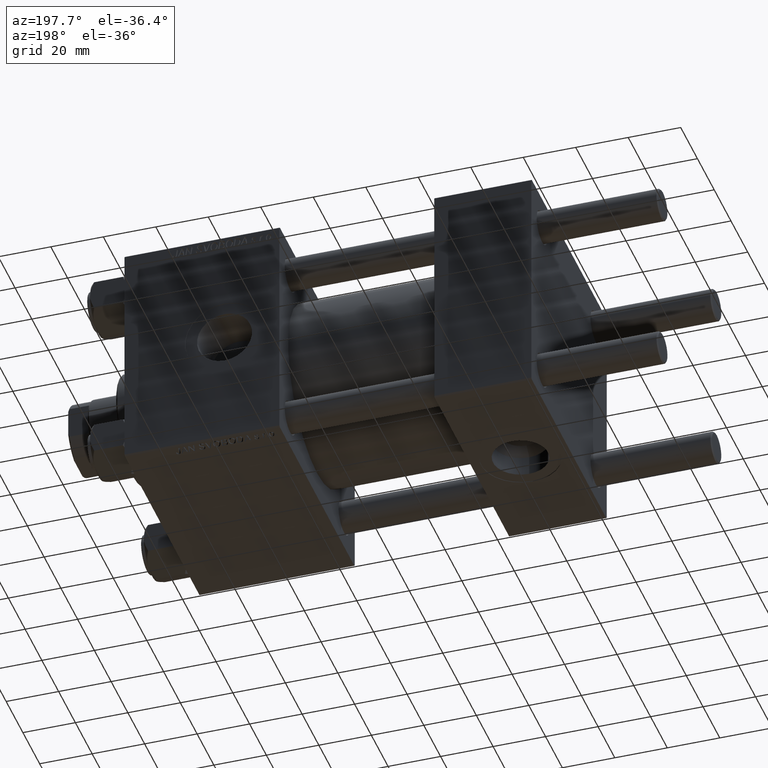
[diagram: clean part render]
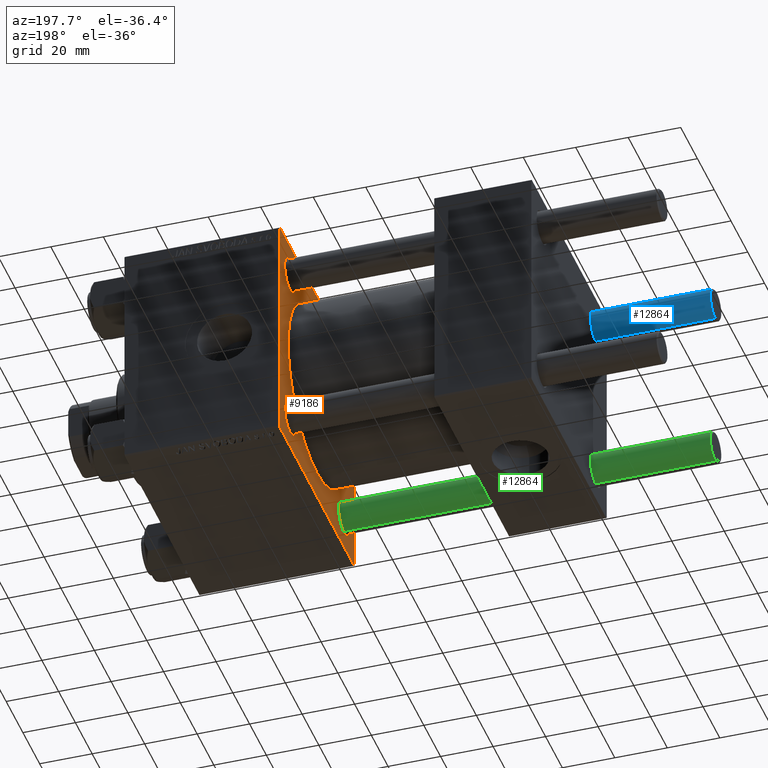
[diagram: same view with three faces highlighted in distinct colors, each labeled with its STEP entity id]
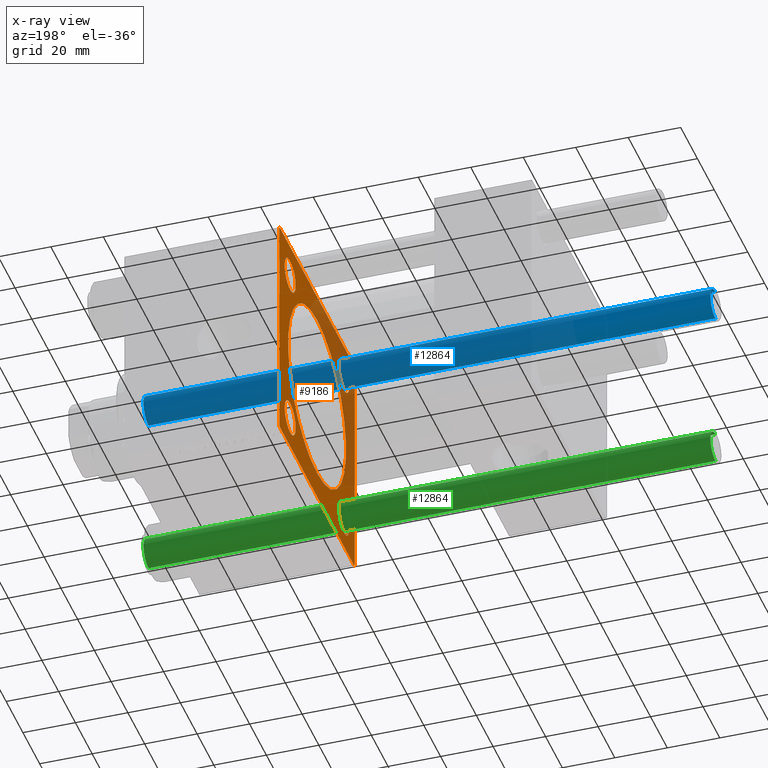
[diagram: x-ray of the same camera — body ghosted, the three highlighted faces saturated]
A machine part, auxiliary view with three faces highlighted in distinct colors.
The next image is the same camera in x-ray (body ghosted, the three faces saturated) — at least one of them is partly hidden behind the body in this view.
Their STEP definitions:

[orange] entity #9186 — the highlighted planar face has unit normal (-1, 0, 0).
#333 = EDGE_CURVE ( 'NONE', #16594, #20220, #38061, .T. ) ;
#665 = DIRECTION ( 'NONE',  ( 0.000000000000000000, 0.000000000000000000, -1.000000000000000000 ) ) ;
#941 = EDGE_LOOP ( 'NONE', ( #2303, #28106 ) ) ;
#1022 = CARTESIAN_POINT ( 'NONE',  ( 96.00000000000000000, 32.14999999999999147, 32.15000000000000568 ) ) ;
#1215 = FACE_OUTER_BOUND ( 'NONE', #5217, .T. ) ;
#1903 = CARTESIAN_POINT ( 'NONE',  ( 96.00000000000000000, -45.00000000000000000, 44.49999999999995737 ) ) ;
#2227 = AXIS2_PLACEMENT_3D ( 'NONE', #24875, #17310, #32704 ) ;
#2303 = ORIENTED_EDGE ( 'NONE', *, *, #30549, .T. ) ;
#2771 = VECTOR ( 'NONE', #43622, 1000.000000000000000 ) ;
#3328 = ORIENTED_EDGE ( 'NONE', *, *, #333, .T. ) ;
#3915 = CARTESIAN_POINT ( 'NONE',  ( 96.00000000000000000, -44.74999999999965183, -44.75000000000027001 ) ) ;
#4421 = EDGE_LOOP ( 'NONE', ( #34519, #29919 ) ) ;
#4543 = EDGE_CURVE ( 'NONE', #25875, #9711, #47150, .T. ) ;
#4649 = LINE ( 'NONE', #3915, #25366 ) ;
#4860 = DIRECTION ( 'NONE',  ( 1.000000000000000000, 0.000000000000000000, 0.000000000000000000 ) ) ;
#5217 = EDGE_LOOP ( 'NONE', ( #26454, #28123, #33689, #12701, #12866, #28057, #24471, #39522 ) ) ;
#5623 = VERTEX_POINT ( 'NONE', #46219 ) ;
#5637 = EDGE_CURVE ( 'NONE', #44655, #5623, #4649, .T. ) ;
#5914 = CARTESIAN_POINT ( 'NONE',  ( 96.00000000000000000, -32.14999999999997726, -32.15000000000001279 ) ) ;
#6168 = AXIS2_PLACEMENT_3D ( 'NONE', #16563, #25321, #21529 ) ;
#7026 = DIRECTION ( 'NONE',  ( 0.000000000000000000, 0.000000000000000000, -1.000000000000000000 ) ) ;
#7035 = CIRCLE ( 'NONE', #13453, 6.500000000000033751 ) ;
#7496 = AXIS2_PLACEMENT_3D ( 'NONE', #7880, #4860, #30595 ) ;
#7539 = VERTEX_POINT ( 'NONE', #48254 ) ;
#7880 = CARTESIAN_POINT ( 'NONE',  ( 96.00000000000000000, 32.14999999999999147, 32.15000000000000568 ) ) ;
#8608 = VECTOR ( 'NONE', #34670, 1000.000000000000114 ) ;
#9088 = VERTEX_POINT ( 'NONE', #30965 ) ;
#9186 = ADVANCED_FACE ( 'NONE', ( #10674, #29367, #13717, #48263, #35737, #1215 ), #29122, .T. ) ;
#9579 = CARTESIAN_POINT ( 'NONE',  ( 96.00000000000000000, -32.14999999999997726, -32.15000000000001279 ) ) ;
#9711 = VERTEX_POINT ( 'NONE', #41810 ) ;
#10302 = VECTOR ( 'NONE', #46414, 1000.000000000000000 ) ;
#10318 = CIRCLE ( 'NONE', #29681, 6.500000000000033751 ) ;
#10674 = FACE_BOUND ( 'NONE', #4421, .T. ) ;
#10801 = CARTESIAN_POINT ( 'NONE',  ( 96.00000000000000000, 32.14999999999999147, -38.65000000000004121 ) ) ;
#10976 = ORIENTED_EDGE ( 'NONE', *, *, #28221, .T. ) ;
#11023 = DIRECTION ( 'NONE',  ( 1.000000000000000000, 0.000000000000000000, 0.000000000000000000 ) ) ;
#11859 = EDGE_CURVE ( 'NONE', #7539, #32390, #43212, .T. ) ;
#12600 = VERTEX_POINT ( 'NONE', #28392 ) ;
#12615 = CARTESIAN_POINT ( 'NONE',  ( 96.00000000000000000, 44.75000000000000000, -44.75000000000000000 ) ) ;
#12701 = ORIENTED_EDGE ( 'NONE', *, *, #14814, .T. ) ;
#12866 = ORIENTED_EDGE ( 'NONE', *, *, #29037, .F. ) ;
#13362 = DIRECTION ( 'NONE',  ( 0.000000000000000000, 0.000000000000000000, 1.000000000000000000 ) ) ;
#13442 = DIRECTION ( 'NONE',  ( 1.000000000000000000, 0.000000000000000000, 0.000000000000000000 ) ) ;
#13453 = AXIS2_PLACEMENT_3D ( 'NONE', #9579, #24963, #40335 ) ;
#13523 = VECTOR ( 'NONE', #47272, 1000.000000000000000 ) ;
#13563 = EDGE_CURVE ( 'NONE', #12600, #49838, #40870, .T. ) ;
#13631 = LINE ( 'NONE', #40113, #2771 ) ;
#13717 = FACE_BOUND ( 'NONE', #19078, .T. ) ;
#14103 = EDGE_CURVE ( 'NONE', #31751, #5623, #20199, .T. ) ;
#14121 = DIRECTION ( 'NONE',  ( 0.000000000000000000, 0.000000000000000000, 1.000000000000000000 ) ) ;
#14352 = CIRCLE ( 'NONE', #32090, 6.500000000000033751 ) ;
#14754 = LINE ( 'NONE', #49291, #8608 ) ;
#14814 = EDGE_CURVE ( 'NONE', #31751, #9088, #14754, .T. ) ;
#14828 = CIRCLE ( 'NONE', #7496, 6.500000000000033751 ) ;
#15073 = CARTESIAN_POINT ( 'NONE',  ( 96.00000000000000000, 45.00000000000001421, 44.49999999999997158 ) ) ;
#15415 = CARTESIAN_POINT ( 'NONE',  ( 96.00000000000000000, -32.14999999999997726, 38.65000000000004832 ) ) ;
#16522 = EDGE_LOOP ( 'NONE', ( #32888, #3328 ) ) ;
#16563 = CARTESIAN_POINT ( 'NONE',  ( 96.00000000000000000, 0.000000000000000000, 0.000000000000000000 ) ) ;
#16594 = VERTEX_POINT ( 'NONE', #18032 ) ;
#16624 = DIRECTION ( 'NONE',  ( 0.000000000000000000, 0.000000000000000000, 1.000000000000000000 ) ) ;
#16667 = CARTESIAN_POINT ( 'NONE',  ( 96.00000000000000000, -45.00000000000000000, 44.99999999999998579 ) ) ;
#17310 = DIRECTION ( 'NONE',  ( 1.000000000000000000, 0.000000000000000000, 0.000000000000000000 ) ) ;
#17793 = VERTEX_POINT ( 'NONE', #19823 ) ;
#18032 = CARTESIAN_POINT ( 'NONE',  ( 96.00000000000000000, 32.14999999999999147, 25.64999999999997016 ) ) ;
#18159 = DIRECTION ( 'NONE',  ( 1.000000000000000000, 0.000000000000000000, 0.000000000000000000 ) ) ;
#18794 = CIRCLE ( 'NONE', #35715, 6.500000000000033751 ) ;
#19078 = EDGE_LOOP ( 'NONE', ( #30797, #10976 ) ) ;
#19571 = VECTOR ( 'NONE', #35291, 1000.000000000000114 ) ;
#19823 = CARTESIAN_POINT ( 'NONE',  ( 96.00000000000000000, 44.49999999999998579, 45.00000000000000000 ) ) ;
#20199 = LINE ( 'NONE', #16667, #10302 ) ;
#20220 = VERTEX_POINT ( 'NONE', #40827 ) ;
#20427 = CARTESIAN_POINT ( 'NONE',  ( 96.00000000000000000, 32.14999999999999147, -32.15000000000000568 ) ) ;
#21500 = CARTESIAN_POINT ( 'NONE',  ( 96.00000000000000000, -32.14999999999997726, -25.64999999999997726 ) ) ;
#21529 = DIRECTION ( 'NONE',  ( -0.000000000000000000, 0.000000000000000000, 1.000000000000000000 ) ) ;
#22085 = CARTESIAN_POINT ( 'NONE',  ( 96.00000000000000000, 32.14999999999999147, -25.64999999999997016 ) ) ;
#22314 = CIRCLE ( 'NONE', #2227, 6.500000000000033751 ) ;
#22611 = EDGE_LOOP ( 'NONE', ( #32438, #35409 ) ) ;
#22853 = CARTESIAN_POINT ( 'NONE',  ( 96.00000000000000000, -32.14999999999997726, 32.15000000000001279 ) ) ;
#23674 = AXIS2_PLACEMENT_3D ( 'NONE', #48370, #48614, #7026 ) ;
#23679 = LINE ( 'NONE', #38326, #19571 ) ;
#24095 = LINE ( 'NONE', #43732, #13523 ) ;
#24471 = ORIENTED_EDGE ( 'NONE', *, *, #47497, .T. ) ;
#24875 = CARTESIAN_POINT ( 'NONE',  ( 96.00000000000000000, 32.14999999999999147, -32.15000000000000568 ) ) ;
#24963 = DIRECTION ( 'NONE',  ( 1.000000000000000000, 0.000000000000000000, 0.000000000000000000 ) ) ;
#25199 = VECTOR ( 'NONE', #44406, 1000.000000000000000 ) ;
#25321 = DIRECTION ( 'NONE',  ( -1.000000000000000000, 0.000000000000000000, -0.000000000000000000 ) ) ;
#25366 = VECTOR ( 'NONE', #38666, 1000.000000000000000 ) ;
#25875 = VERTEX_POINT ( 'NONE', #42098 ) ;
#26454 = ORIENTED_EDGE ( 'NONE', *, *, #26844, .T. ) ;
#26844 = EDGE_CURVE ( 'NONE', #9711, #44655, #29805, .T. ) ;
#28057 = ORIENTED_EDGE ( 'NONE', *, *, #31850, .T. ) ;
#28106 = ORIENTED_EDGE ( 'NONE', *, *, #11859, .T. ) ;
#28123 = ORIENTED_EDGE ( 'NONE', *, *, #5637, .T. ) ;
#28221 = EDGE_CURVE ( 'NONE', #34813, #35050, #18794, .T. ) ;
#28392 = CARTESIAN_POINT ( 'NONE',  ( 96.00000000000000000, -32.14999999999997726, 25.64999999999997726 ) ) ;
#28399 = AXIS2_PLACEMENT_3D ( 'NONE', #1022, #46868, #16624 ) ;
#29037 = EDGE_CURVE ( 'NONE', #17793, #9088, #13631, .T. ) ;
#29122 = PLANE ( 'NONE',  #6168 ) ;
#29367 = FACE_BOUND ( 'NONE', #16522, .T. ) ;
#29660 = CARTESIAN_POINT ( 'NONE',  ( 96.00000000000000000, -44.49999999999990052, -45.00000000000000000 ) ) ;
#29681 = AXIS2_PLACEMENT_3D ( 'NONE', #5914, #13442, #40425 ) ;
#29683 = CARTESIAN_POINT ( 'NONE',  ( 96.00000000000000000, 0.000000000000000000, 34.49999999999999289 ) ) ;
#29805 = LINE ( 'NONE', #48206, #25199 ) ;
#29919 = ORIENTED_EDGE ( 'NONE', *, *, #13563, .T. ) ;
#30549 = EDGE_CURVE ( 'NONE', #32390, #7539, #45412, .T. ) ;
#30595 = DIRECTION ( 'NONE',  ( 0.000000000000000000, 0.000000000000000000, 1.000000000000000000 ) ) ;
#30797 = ORIENTED_EDGE ( 'NONE', *, *, #45836, .T. ) ;
#30893 = EDGE_CURVE ( 'NONE', #20220, #16594, #14828, .T. ) ;
#30965 = CARTESIAN_POINT ( 'NONE',  ( 96.00000000000000000, -44.49999999999994316, 44.99999999999998579 ) ) ;
#31189 = DIRECTION ( 'NONE',  ( 0.000000000000000000, 0.000000000000000000, 1.000000000000000000 ) ) ;
#31751 = VERTEX_POINT ( 'NONE', #1903 ) ;
#31850 = EDGE_CURVE ( 'NONE', #17793, #34796, #23679, .T. ) ;
#32090 = AXIS2_PLACEMENT_3D ( 'NONE', #49399, #18159, #14121 ) ;
#32390 = VERTEX_POINT ( 'NONE', #29683 ) ;
#32438 = ORIENTED_EDGE ( 'NONE', *, *, #42411, .T. ) ;
#32704 = DIRECTION ( 'NONE',  ( 0.000000000000000000, 0.000000000000000000, 1.000000000000000000 ) ) ;
#32846 = VERTEX_POINT ( 'NONE', #44385 ) ;
#32888 = ORIENTED_EDGE ( 'NONE', *, *, #30893, .T. ) ;
#33689 = ORIENTED_EDGE ( 'NONE', *, *, #14103, .F. ) ;
#34519 = ORIENTED_EDGE ( 'NONE', *, *, #44410, .T. ) ;
#34670 = DIRECTION ( 'NONE',  ( -0.000000000000000000, 0.7071067811865474617, 0.7071067811865474617 ) ) ;
#34796 = VERTEX_POINT ( 'NONE', #15073 ) ;
#34813 = VERTEX_POINT ( 'NONE', #10801 ) ;
#35050 = VERTEX_POINT ( 'NONE', #22085 ) ;
#35244 = AXIS2_PLACEMENT_3D ( 'NONE', #22853, #11023, #31189 ) ;
#35291 = DIRECTION ( 'NONE',  ( 0.000000000000000000, 0.7071067811865474617, -0.7071067811865474617 ) ) ;
#35409 = ORIENTED_EDGE ( 'NONE', *, *, #44756, .T. ) ;
#35715 = AXIS2_PLACEMENT_3D ( 'NONE', #20427, #47908, #13362 ) ;
#35737 = FACE_BOUND ( 'NONE', #941, .T. ) ;
#38061 = CIRCLE ( 'NONE', #28399, 6.500000000000033751 ) ;
#38326 = CARTESIAN_POINT ( 'NONE',  ( 96.00000000000000000, 44.74999999999998579, 44.74999999999998579 ) ) ;
#38666 = DIRECTION ( 'NONE',  ( 0.000000000000000000, -0.7071067811865524577, 0.7071067811865426878 ) ) ;
#39522 = ORIENTED_EDGE ( 'NONE', *, *, #4543, .T. ) ;
#40113 = CARTESIAN_POINT ( 'NONE',  ( 96.00000000000000000, 45.00000000000001421, 45.00000000000000000 ) ) ;
#40335 = DIRECTION ( 'NONE',  ( 0.000000000000000000, 0.000000000000000000, 1.000000000000000000 ) ) ;
#40425 = DIRECTION ( 'NONE',  ( 0.000000000000000000, 0.000000000000000000, 1.000000000000000000 ) ) ;
#40827 = CARTESIAN_POINT ( 'NONE',  ( 96.00000000000000000, 32.14999999999999147, 38.65000000000004121 ) ) ;
#40870 = CIRCLE ( 'NONE', #35244, 6.500000000000033751 ) ;
#41810 = CARTESIAN_POINT ( 'NONE',  ( 96.00000000000000000, 44.50000000000001421, -45.00000000000000000 ) ) ;
#42098 = CARTESIAN_POINT ( 'NONE',  ( 96.00000000000000000, 45.00000000000001421, -44.49999999999997158 ) ) ;
#42411 = EDGE_CURVE ( 'NONE', #49627, #32846, #7035, .T. ) ;
#42483 = DIRECTION ( 'NONE',  ( 1.000000000000000000, 0.000000000000000000, 0.000000000000000000 ) ) ;
#43114 = DIRECTION ( 'NONE',  ( -0.000000000000000000, -0.7071067811865474617, -0.7071067811865474617 ) ) ;
#43212 = CIRCLE ( 'NONE', #46455, 34.49999999999999289 ) ;
#43622 = DIRECTION ( 'NONE',  ( 0.000000000000000000, -1.000000000000000000, -1.541976423090495140E-16 ) ) ;
#43732 = CARTESIAN_POINT ( 'NONE',  ( 96.00000000000000000, 45.00000000000001421, 45.00000000000000000 ) ) ;
#44385 = CARTESIAN_POINT ( 'NONE',  ( 96.00000000000000000, -32.14999999999997726, -38.65000000000004832 ) ) ;
#44406 = DIRECTION ( 'NONE',  ( 0.000000000000000000, -1.000000000000000000, 0.000000000000000000 ) ) ;
#44410 = EDGE_CURVE ( 'NONE', #49838, #12600, #14352, .T. ) ;
#44655 = VERTEX_POINT ( 'NONE', #29660 ) ;
#44756 = EDGE_CURVE ( 'NONE', #32846, #49627, #10318, .T. ) ;
#45412 = CIRCLE ( 'NONE', #23674, 34.49999999999999289 ) ;
#45836 = EDGE_CURVE ( 'NONE', #35050, #34813, #22314, .T. ) ;
#46020 = CARTESIAN_POINT ( 'NONE',  ( 96.00000000000000000, 0.000000000000000000, 0.000000000000000000 ) ) ;
#46219 = CARTESIAN_POINT ( 'NONE',  ( 96.00000000000000000, -44.99999999999999289, -44.49999999999991473 ) ) ;
#46414 = DIRECTION ( 'NONE',  ( 0.000000000000000000, 7.709882115452478166E-17, -1.000000000000000000 ) ) ;
#46455 = AXIS2_PLACEMENT_3D ( 'NONE', #46020, #42483, #665 ) ;
#46868 = DIRECTION ( 'NONE',  ( 1.000000000000000000, 0.000000000000000000, 0.000000000000000000 ) ) ;
#47150 = LINE ( 'NONE', #12615, #48673 ) ;
#47272 = DIRECTION ( 'NONE',  ( 0.000000000000000000, 0.000000000000000000, -1.000000000000000000 ) ) ;
#47497 = EDGE_CURVE ( 'NONE', #34796, #25875, #24095, .T. ) ;
#47908 = DIRECTION ( 'NONE',  ( 1.000000000000000000, 0.000000000000000000, 0.000000000000000000 ) ) ;
#48206 = CARTESIAN_POINT ( 'NONE',  ( 96.00000000000000000, 45.00000000000001421, -45.00000000000000000 ) ) ;
#48254 = CARTESIAN_POINT ( 'NONE',  ( 96.00000000000000000, 4.225031457058367344E-15, -34.49999999999999289 ) ) ;
#48263 = FACE_BOUND ( 'NONE', #22611, .T. ) ;
#48370 = CARTESIAN_POINT ( 'NONE',  ( 96.00000000000000000, 0.000000000000000000, 0.000000000000000000 ) ) ;
#48614 = DIRECTION ( 'NONE',  ( 1.000000000000000000, 0.000000000000000000, 0.000000000000000000 ) ) ;
#48673 = VECTOR ( 'NONE', #43114, 1000.000000000000114 ) ;
#49291 = CARTESIAN_POINT ( 'NONE',  ( 96.00000000000000000, -44.74999999999997158, 44.74999999999997158 ) ) ;
#49399 = CARTESIAN_POINT ( 'NONE',  ( 96.00000000000000000, -32.14999999999997726, 32.15000000000001279 ) ) ;
#49627 = VERTEX_POINT ( 'NONE', #21500 ) ;
#49838 = VERTEX_POINT ( 'NONE', #15415 ) ;

[blue] entity #12864 — the highlighted cylindrical surface (edge-blend (fillet) strip) has radius 6 mm, axis along (1, -0, 0).
#777 = ORIENTED_EDGE ( 'NONE', *, *, #8164, .T. ) ;
#896 = LINE ( 'NONE', #12201, #23802 ) ;
#1298 = DIRECTION ( 'NONE',  ( -0.000000000000000000, -0.000000000000000000, -1.000000000000000000 ) ) ;
#3058 = CARTESIAN_POINT ( 'NONE',  ( 6.000000000000000888, 7.347880794884120722E-16, 217.0000000000000000 ) ) ;
#5688 = CARTESIAN_POINT ( 'NONE',  ( -6.000000000000000888, 0.000000000000000000, 0.4999999999999449329 ) ) ;
#5829 = ORIENTED_EDGE ( 'NONE', *, *, #17300, .F. ) ;
#7407 = ORIENTED_EDGE ( 'NONE', *, *, #17921, .T. ) ;
#8164 = EDGE_CURVE ( 'NONE', #10417, #18960, #896, .T. ) ;
#8435 = DIRECTION ( 'NONE',  ( -0.000000000000000000, -0.000000000000000000, -1.000000000000000000 ) ) ;
#10337 = AXIS2_PLACEMENT_3D ( 'NONE', #30085, #18227, #45437 ) ;
#10417 = VERTEX_POINT ( 'NONE', #33824 ) ;
#10917 = EDGE_CURVE ( 'NONE', #31934, #10417, #14228, .T. ) ;
#12201 = CARTESIAN_POINT ( 'NONE',  ( -6.000000000000000888, 0.000000000000000000, 217.0000000000000000 ) ) ;
#12743 = CIRCLE ( 'NONE', #10337, 6.000000000000000888 ) ;
#12864 = ADVANCED_FACE ( 'NONE', ( #47147 ), #28515, .T. ) ;
#14118 = LINE ( 'NONE', #3058, #36869 ) ;
#14228 = CIRCLE ( 'NONE', #23870, 6.000000000000000888 ) ;
#16396 = DIRECTION ( 'NONE',  ( -1.000000000000000000, 0.000000000000000000, 0.000000000000000000 ) ) ;
#17077 = VERTEX_POINT ( 'NONE', #17412 ) ;
#17300 = EDGE_CURVE ( 'NONE', #31934, #17077, #14118, .T. ) ;
#17412 = CARTESIAN_POINT ( 'NONE',  ( 6.000000000000000888, 7.347880794884120722E-16, 0.4999999999999449329 ) ) ;
#17921 = EDGE_CURVE ( 'NONE', #18960, #17077, #12743, .T. ) ;
#18227 = DIRECTION ( 'NONE',  ( -0.000000000000000000, -0.000000000000000000, 1.000000000000000000 ) ) ;
#18960 = VERTEX_POINT ( 'NONE', #5688 ) ;
#22336 = DIRECTION ( 'NONE',  ( 1.000000000000000000, 0.000000000000000000, 0.000000000000000000 ) ) ;
#23802 = VECTOR ( 'NONE', #8435, 1000.000000000000000 ) ;
#23870 = AXIS2_PLACEMENT_3D ( 'NONE', #26384, #33214, #22336 ) ;
#26384 = CARTESIAN_POINT ( 'NONE',  ( 0.000000000000000000, 0.000000000000000000, 216.4999999999999716 ) ) ;
#28515 = CYLINDRICAL_SURFACE ( 'NONE', #32860, 6.000000000000000888 ) ;
#30085 = CARTESIAN_POINT ( 'NONE',  ( 0.000000000000000000, 0.000000000000000000, 0.4999999999999449329 ) ) ;
#31934 = VERTEX_POINT ( 'NONE', #47374 ) ;
#31993 = EDGE_LOOP ( 'NONE', ( #5829, #41341, #777, #7407 ) ) ;
#32860 = AXIS2_PLACEMENT_3D ( 'NONE', #43111, #1298, #16396 ) ;
#33214 = DIRECTION ( 'NONE',  ( 0.000000000000000000, 0.000000000000000000, -1.000000000000000000 ) ) ;
#33802 = DIRECTION ( 'NONE',  ( -0.000000000000000000, -0.000000000000000000, -1.000000000000000000 ) ) ;
#33824 = CARTESIAN_POINT ( 'NONE',  ( -6.000000000000000888, 0.000000000000000000, 216.4999999999999716 ) ) ;
#36869 = VECTOR ( 'NONE', #33802, 1000.000000000000000 ) ;
#41341 = ORIENTED_EDGE ( 'NONE', *, *, #10917, .T. ) ;
#43111 = CARTESIAN_POINT ( 'NONE',  ( 0.000000000000000000, 0.000000000000000000, 217.0000000000000000 ) ) ;
#45437 = DIRECTION ( 'NONE',  ( 1.000000000000000000, 0.000000000000000000, 0.000000000000000000 ) ) ;
#47147 = FACE_OUTER_BOUND ( 'NONE', #31993, .T. ) ;
#47374 = CARTESIAN_POINT ( 'NONE',  ( 6.000000000000000888, 7.347880794884120722E-16, 216.4999999999999716 ) ) ;

[green] entity #12864 — the highlighted cylindrical surface (edge-blend (fillet) strip) has radius 6 mm, axis along (-1, 0, 0).
#777 = ORIENTED_EDGE ( 'NONE', *, *, #8164, .T. ) ;
#896 = LINE ( 'NONE', #12201, #23802 ) ;
#1298 = DIRECTION ( 'NONE',  ( -0.000000000000000000, -0.000000000000000000, -1.000000000000000000 ) ) ;
#3058 = CARTESIAN_POINT ( 'NONE',  ( 6.000000000000000888, 7.347880794884120722E-16, 217.0000000000000000 ) ) ;
#5688 = CARTESIAN_POINT ( 'NONE',  ( -6.000000000000000888, 0.000000000000000000, 0.4999999999999449329 ) ) ;
#5829 = ORIENTED_EDGE ( 'NONE', *, *, #17300, .F. ) ;
#7407 = ORIENTED_EDGE ( 'NONE', *, *, #17921, .T. ) ;
#8164 = EDGE_CURVE ( 'NONE', #10417, #18960, #896, .T. ) ;
#8435 = DIRECTION ( 'NONE',  ( -0.000000000000000000, -0.000000000000000000, -1.000000000000000000 ) ) ;
#10337 = AXIS2_PLACEMENT_3D ( 'NONE', #30085, #18227, #45437 ) ;
#10417 = VERTEX_POINT ( 'NONE', #33824 ) ;
#10917 = EDGE_CURVE ( 'NONE', #31934, #10417, #14228, .T. ) ;
#12201 = CARTESIAN_POINT ( 'NONE',  ( -6.000000000000000888, 0.000000000000000000, 217.0000000000000000 ) ) ;
#12743 = CIRCLE ( 'NONE', #10337, 6.000000000000000888 ) ;
#12864 = ADVANCED_FACE ( 'NONE', ( #47147 ), #28515, .T. ) ;
#14118 = LINE ( 'NONE', #3058, #36869 ) ;
#14228 = CIRCLE ( 'NONE', #23870, 6.000000000000000888 ) ;
#16396 = DIRECTION ( 'NONE',  ( -1.000000000000000000, 0.000000000000000000, 0.000000000000000000 ) ) ;
#17077 = VERTEX_POINT ( 'NONE', #17412 ) ;
#17300 = EDGE_CURVE ( 'NONE', #31934, #17077, #14118, .T. ) ;
#17412 = CARTESIAN_POINT ( 'NONE',  ( 6.000000000000000888, 7.347880794884120722E-16, 0.4999999999999449329 ) ) ;
#17921 = EDGE_CURVE ( 'NONE', #18960, #17077, #12743, .T. ) ;
#18227 = DIRECTION ( 'NONE',  ( -0.000000000000000000, -0.000000000000000000, 1.000000000000000000 ) ) ;
#18960 = VERTEX_POINT ( 'NONE', #5688 ) ;
#22336 = DIRECTION ( 'NONE',  ( 1.000000000000000000, 0.000000000000000000, 0.000000000000000000 ) ) ;
#23802 = VECTOR ( 'NONE', #8435, 1000.000000000000000 ) ;
#23870 = AXIS2_PLACEMENT_3D ( 'NONE', #26384, #33214, #22336 ) ;
#26384 = CARTESIAN_POINT ( 'NONE',  ( 0.000000000000000000, 0.000000000000000000, 216.4999999999999716 ) ) ;
#28515 = CYLINDRICAL_SURFACE ( 'NONE', #32860, 6.000000000000000888 ) ;
#30085 = CARTESIAN_POINT ( 'NONE',  ( 0.000000000000000000, 0.000000000000000000, 0.4999999999999449329 ) ) ;
#31934 = VERTEX_POINT ( 'NONE', #47374 ) ;
#31993 = EDGE_LOOP ( 'NONE', ( #5829, #41341, #777, #7407 ) ) ;
#32860 = AXIS2_PLACEMENT_3D ( 'NONE', #43111, #1298, #16396 ) ;
#33214 = DIRECTION ( 'NONE',  ( 0.000000000000000000, 0.000000000000000000, -1.000000000000000000 ) ) ;
#33802 = DIRECTION ( 'NONE',  ( -0.000000000000000000, -0.000000000000000000, -1.000000000000000000 ) ) ;
#33824 = CARTESIAN_POINT ( 'NONE',  ( -6.000000000000000888, 0.000000000000000000, 216.4999999999999716 ) ) ;
#36869 = VECTOR ( 'NONE', #33802, 1000.000000000000000 ) ;
#41341 = ORIENTED_EDGE ( 'NONE', *, *, #10917, .T. ) ;
#43111 = CARTESIAN_POINT ( 'NONE',  ( 0.000000000000000000, 0.000000000000000000, 217.0000000000000000 ) ) ;
#45437 = DIRECTION ( 'NONE',  ( 1.000000000000000000, 0.000000000000000000, 0.000000000000000000 ) ) ;
#47147 = FACE_OUTER_BOUND ( 'NONE', #31993, .T. ) ;
#47374 = CARTESIAN_POINT ( 'NONE',  ( 6.000000000000000888, 7.347880794884120722E-16, 216.4999999999999716 ) ) ;